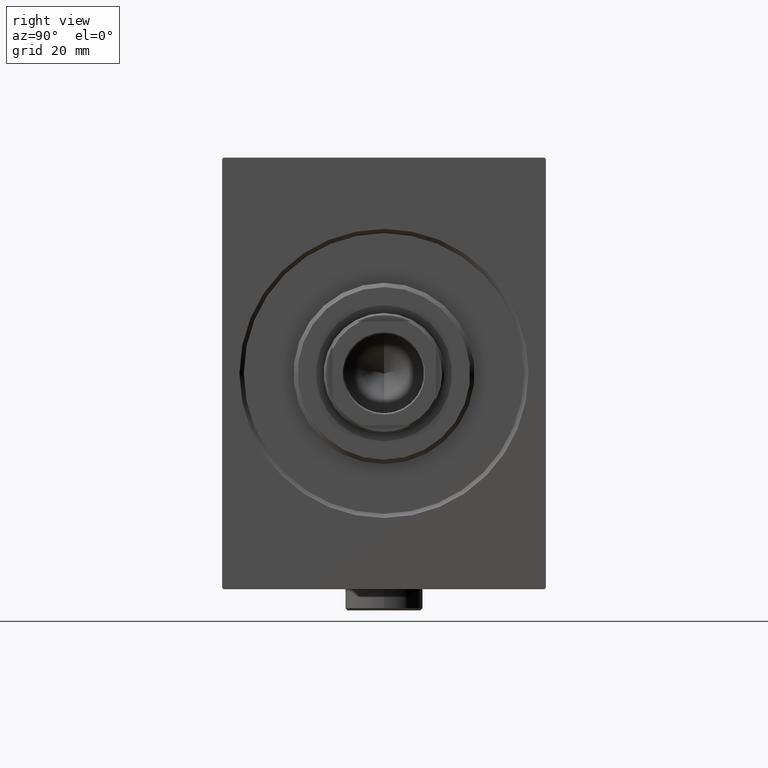
[diagram: clean part render]
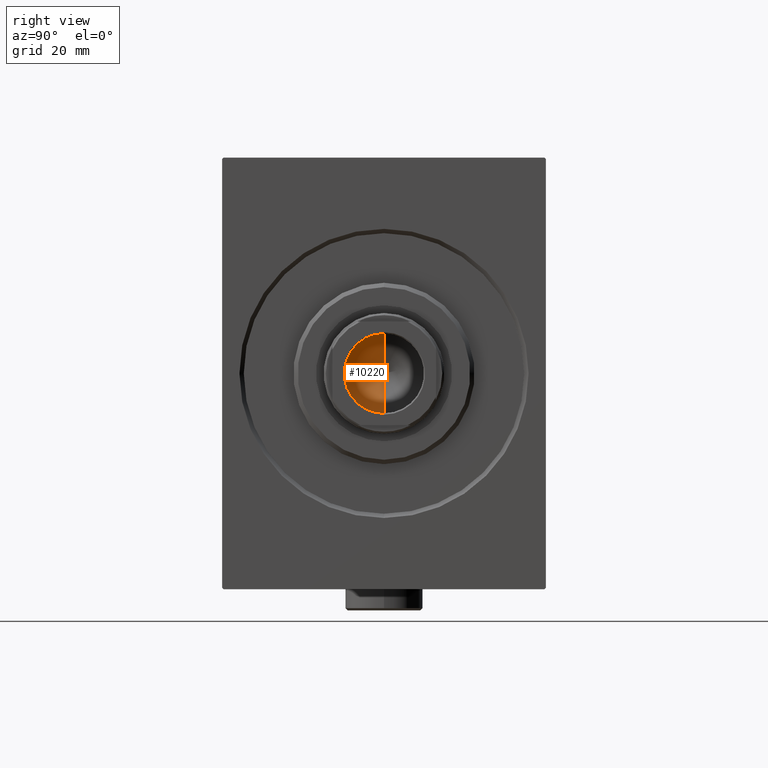
[diagram: same view with one face highlighted and labeled with its STEP entity id]
A machine part, right view. The second image highlights one B-rep face of the part: STEP entity #10220.
In plain terms, the highlighted conical surface has half-angle 59 deg.
Its self-contained STEP definition (entity closure, byte-faithful):
#1039 = DIRECTION ( 'NONE',  ( 0.8571673007021113344, 0.000000000000000000, 0.5150380749100558209 ) ) ;
#3657 = ORIENTED_EDGE ( 'NONE', *, *, #6223, .T. ) ;
#6223 = EDGE_CURVE ( 'NONE', #20029, #17697, #37011, .T. ) ;
#6861 = ORIENTED_EDGE ( 'NONE', *, *, #31284, .F. ) ;
#8288 = VECTOR ( 'NONE', #16938, 1000.000000000000000 ) ;
#8590 = DIRECTION ( 'NONE',  ( 1.000000000000000000, 0.000000000000000000, 0.000000000000000000 ) ) ;
#9044 = DIRECTION ( 'NONE',  ( -0.000000000000000000, -0.000000000000000000, 1.000000000000000000 ) ) ;
#10220 = ADVANCED_FACE ( 'NONE', ( #22612 ), #40427, .F. ) ;
#14073 = AXIS2_PLACEMENT_3D ( 'NONE', #39576, #9044, #8590 ) ;
#14983 = CARTESIAN_POINT ( 'NONE',  ( 0.000000000000000000, 0.000000000000000000, 71.00000000000001421 ) ) ;
#16717 = CARTESIAN_POINT ( 'NONE',  ( -9.249999999999994671, 1.132798289211300909E-15, 71.00000000000001421 ) ) ;
#16938 = DIRECTION ( 'NONE',  ( -0.8571673007021113344, 1.049727191138617463E-16, 0.5150380749100558209 ) ) ;
#17697 = VERTEX_POINT ( 'NONE', #39224 ) ;
#20029 = VERTEX_POINT ( 'NONE', #39169 ) ;
#22261 = EDGE_LOOP ( 'NONE', ( #6861, #3657, #28550 ) ) ;
#22612 = FACE_OUTER_BOUND ( 'NONE', #22261, .T. ) ;
#23443 = CARTESIAN_POINT ( 'NONE',  ( 9.249999999999994671, 0.000000000000000000, 71.00000000000001421 ) ) ;
#27907 = DIRECTION ( 'NONE',  ( 1.000000000000000000, 0.000000000000000000, 0.000000000000000000 ) ) ;
#28550 = ORIENTED_EDGE ( 'NONE', *, *, #33910, .T. ) ;
#28638 = LINE ( 'NONE', #36014, #31490 ) ;
#31284 = EDGE_CURVE ( 'NONE', #20029, #41561, #28638, .T. ) ;
#31490 = VECTOR ( 'NONE', #1039, 1000.000000000000000 ) ;
#33910 = EDGE_CURVE ( 'NONE', #17697, #41561, #42960, .T. ) ;
#36014 = CARTESIAN_POINT ( 'NONE',  ( 9.249999999999994671, 0.000000000000000000, 71.00000000000001421 ) ) ;
#37011 = LINE ( 'NONE', #16717, #8288 ) ;
#38394 = DIRECTION ( 'NONE',  ( -0.000000000000000000, -0.000000000000000000, 1.000000000000000000 ) ) ;
#38645 = AXIS2_PLACEMENT_3D ( 'NONE', #14983, #38394, #27907 ) ;
#39169 = CARTESIAN_POINT ( 'NONE',  ( -6.793016015247754405E-15, 0.000000000000000000, 65.44203927399505005 ) ) ;
#39224 = CARTESIAN_POINT ( 'NONE',  ( -9.249999999999994671, 1.132798289211300909E-15, 71.00000000000001421 ) ) ;
#39576 = CARTESIAN_POINT ( 'NONE',  ( 0.000000000000000000, 0.000000000000000000, 71.00000000000001421 ) ) ;
#40427 = CONICAL_SURFACE ( 'NONE', #14073, 9.249999999999994671, 1.029744258676652535 ) ;
#41561 = VERTEX_POINT ( 'NONE', #23443 ) ;
#42960 = CIRCLE ( 'NONE', #38645, 9.249999999999994671 ) ;